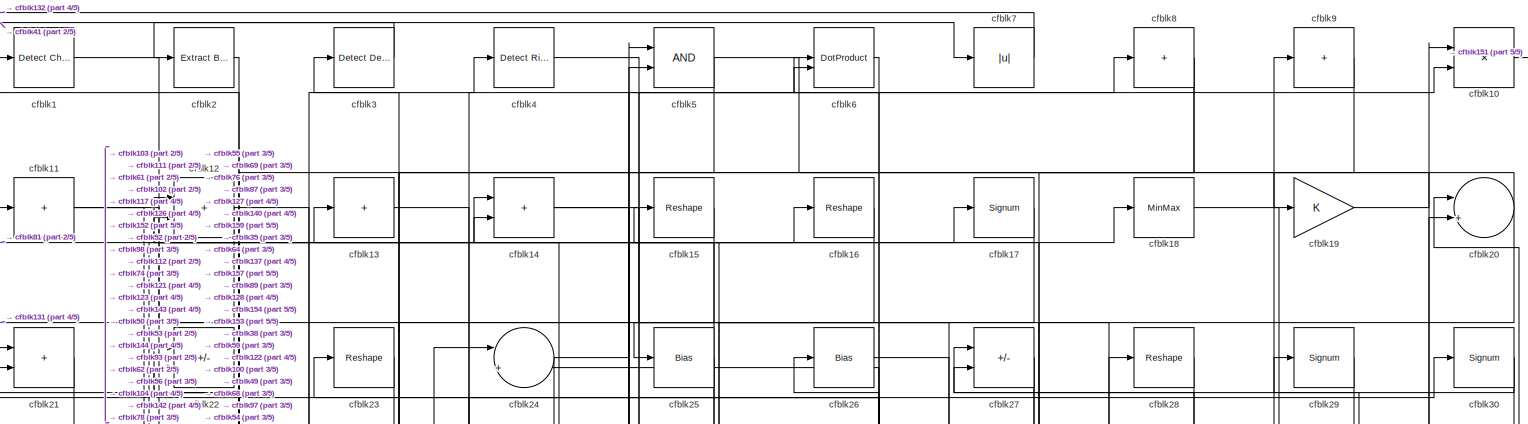
[diagram: root canvas - part 1/5, full width, top band]
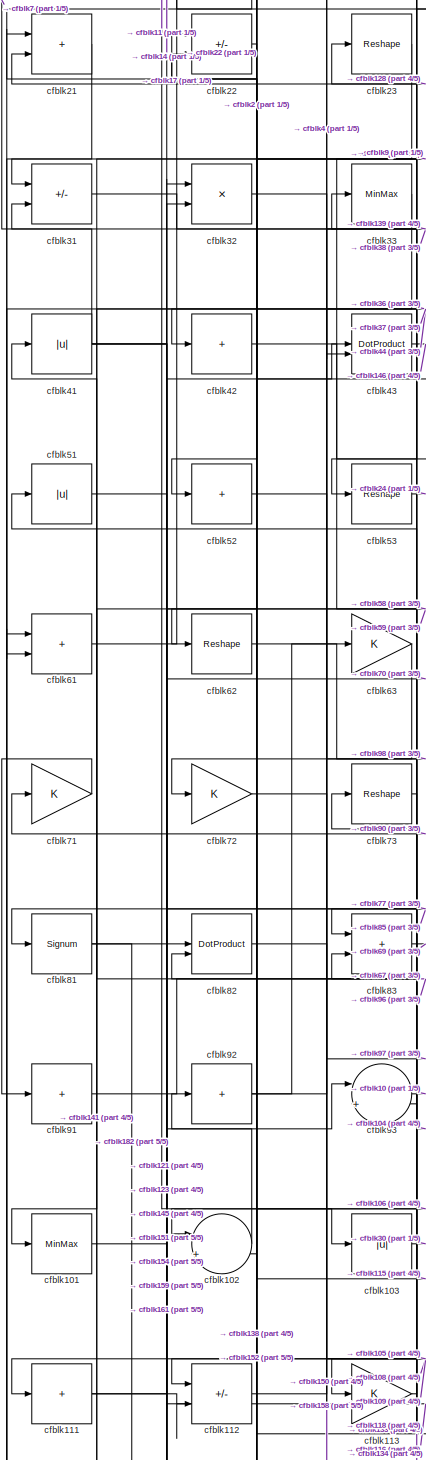
[diagram: root canvas - part 2/5, middle left region]
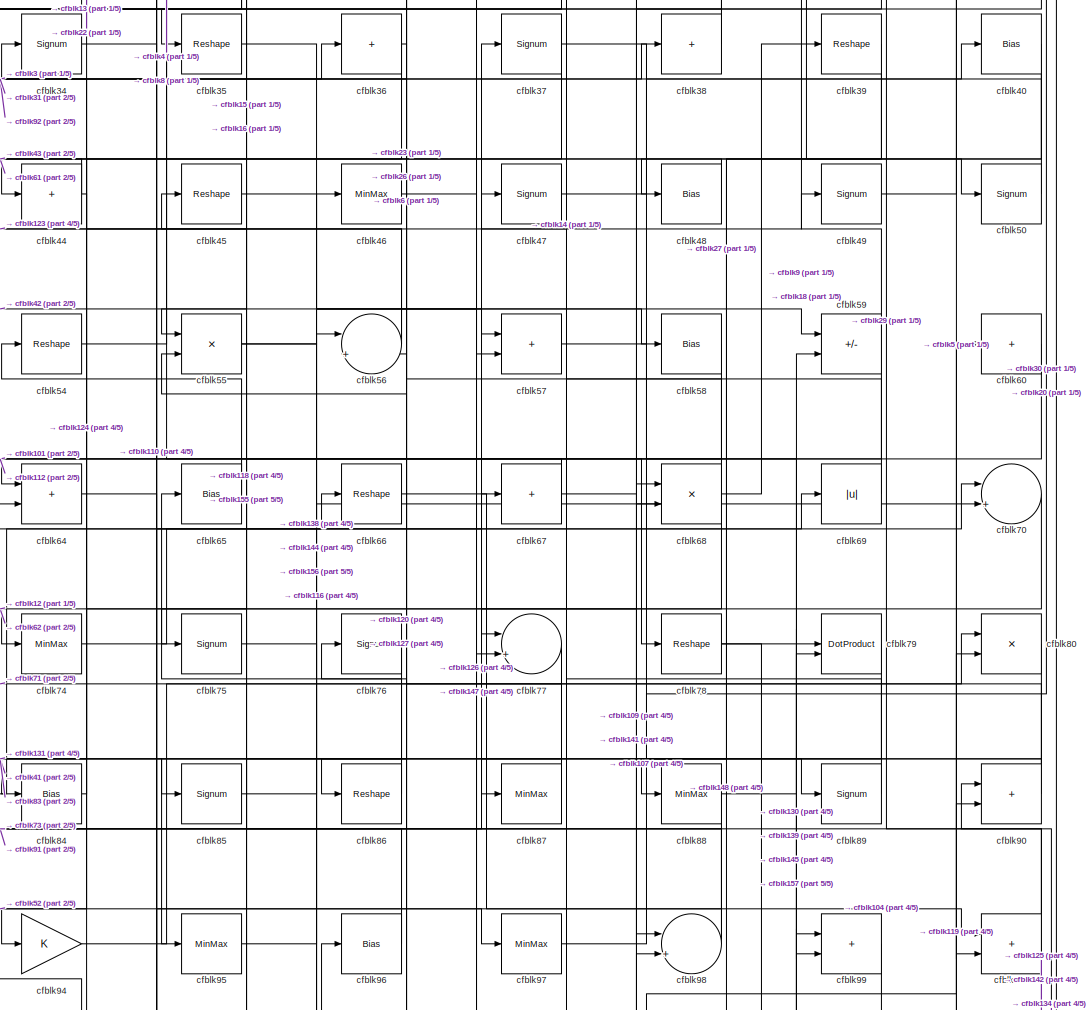
[diagram: root canvas - part 3/5, central region]
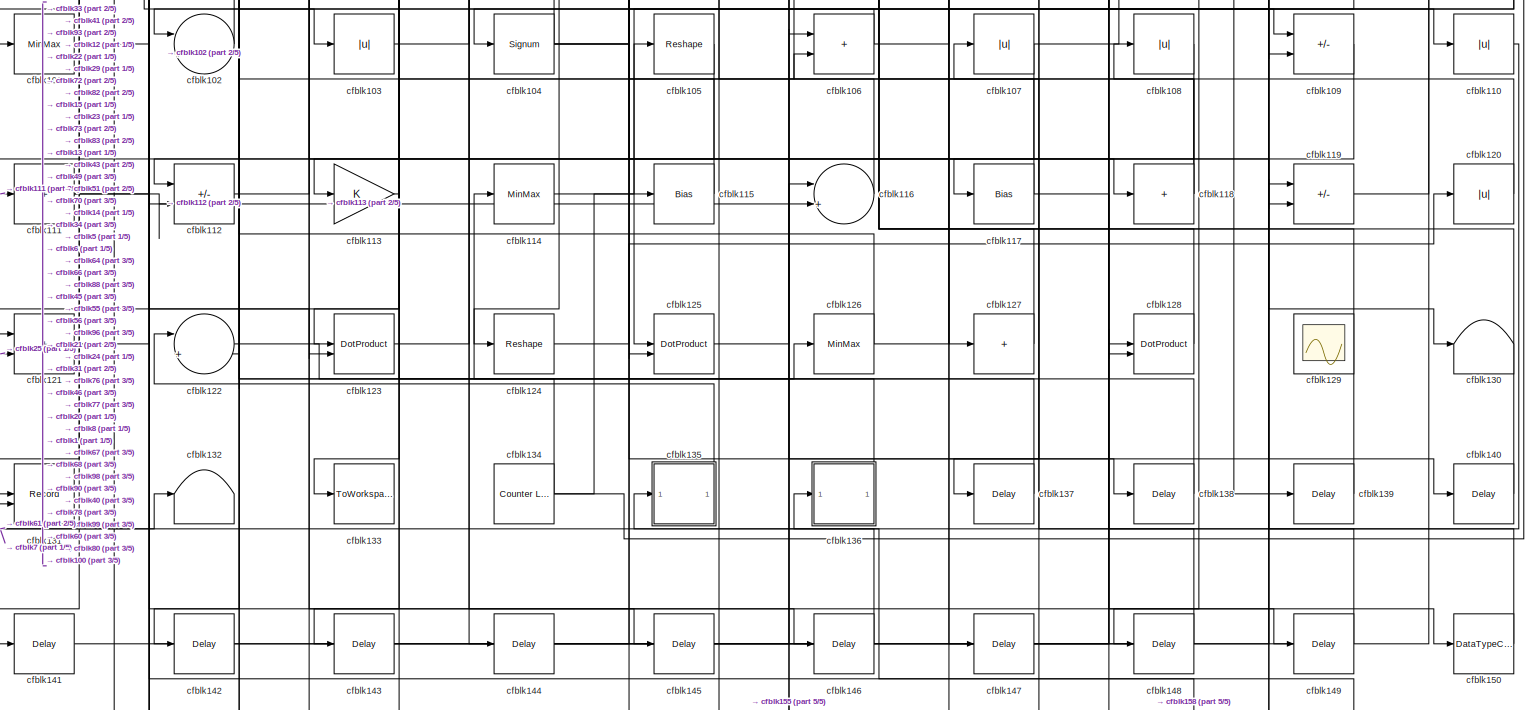
[diagram: root canvas - part 4/5, full width, middle band]
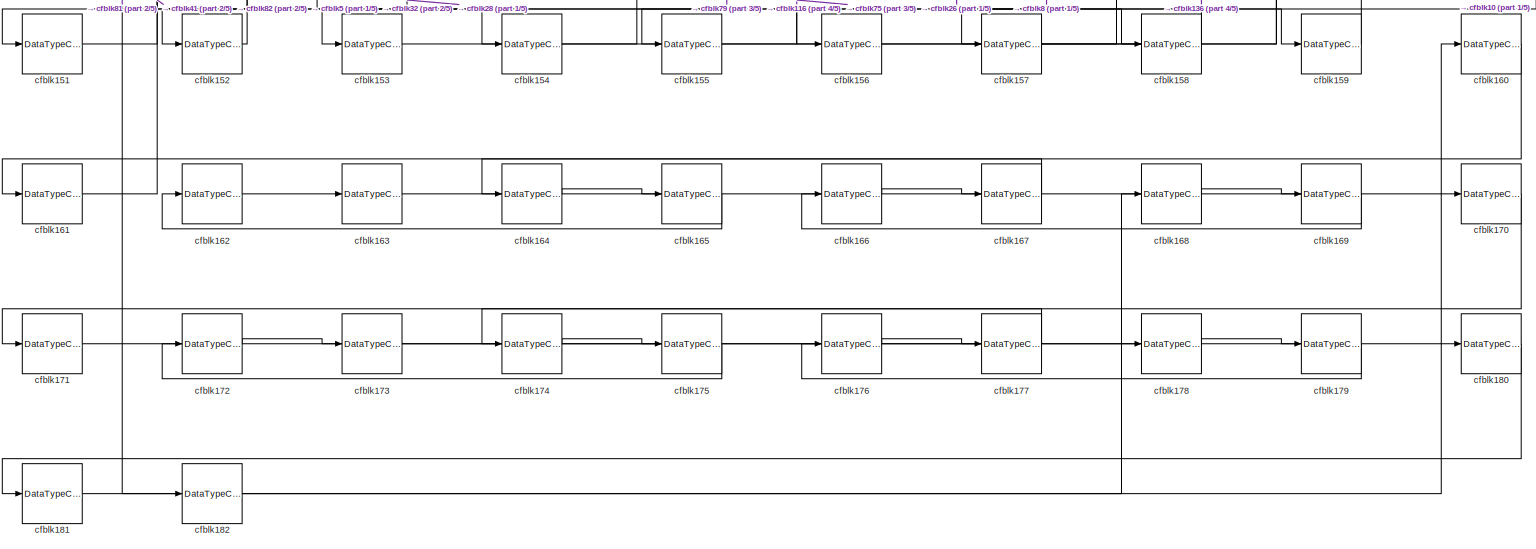
[diagram: root canvas - part 5/5, full width, bottom band]
MODEL slx_d0ea872ea28e
KIND model
CONFIG AbsTol = auto
CONFIG EnableMultiTasking = off
CONFIG FixedStep = auto
CONFIG MaxStep = auto
CONFIG MinStep = auto
CONFIG RelTol = 1e-3
CONFIG SampleTimeConstraint = Unconstrained
CONFIG SolverName = VariableStepAuto
CONFIG StartTime = 0.0
CONFIG StopTime = 10.0
BLOCK [Reference] cfblk1  REF=simulink/Logic and Bit
Operations/Detect
Change
  LibrarySourceBlock = hdlsllib/Logic and Bit\nOperations/Detect\nChange
  SourceBlock = simulink/Logic and Bit\nOperations/Detect\nChange
  SourceType = Detect Change
BLOCK [Product] cfblk10
  Inputs = */
  RndMeth = Zero
  SaturateOnIntegerOverflow = on
BLOCK [Sum] cfblk100
  IconShape = rectangular
BLOCK [MinMax] cfblk101
BLOCK [Sum] cfblk102
  Inputs = |++
BLOCK [Abs] cfblk103
  SaturateOnIntegerOverflow = off
BLOCK [Signum] cfblk104
BLOCK [Reshape] cfblk105
BLOCK [Sum] cfblk106
  IconShape = rectangular
BLOCK [Abs] cfblk107
  SaturateOnIntegerOverflow = off
BLOCK [Abs] cfblk108
  SaturateOnIntegerOverflow = off
BLOCK [Sum] cfblk109
  IconShape = rectangular
  Inputs = +-
BLOCK [Sum] cfblk11
  IconShape = rectangular
  Inputs = +
BLOCK [Abs] cfblk110
  SaturateOnIntegerOverflow = off
BLOCK [Sum] cfblk111
  IconShape = rectangular
  Inputs = +
BLOCK [Sum] cfblk112
  IconShape = rectangular
  Inputs = +-
BLOCK [Gain] cfblk113
BLOCK [MinMax] cfblk114
BLOCK [Bias] cfblk115
  Bias = 0.0
  SaturateOnIntegerOverflow = off
BLOCK [Sum] cfblk116
  Inputs = |++
BLOCK [Bias] cfblk117
  Bias = 0.0
  SaturateOnIntegerOverflow = off
BLOCK [Sum] cfblk118
  IconShape = rectangular
  Inputs = +
BLOCK [Sum] cfblk119
  IconShape = rectangular
  Inputs = +-
BLOCK [Sum] cfblk12
  IconShape = rectangular
BLOCK [Abs] cfblk120
  SaturateOnIntegerOverflow = off
BLOCK [Sum] cfblk121
  IconShape = rectangular
BLOCK [Sum] cfblk122
  Inputs = |++
BLOCK [DotProduct] cfblk123
  OutDataTypeStr = Inherit: Inherit via internal rule
BLOCK [Reshape] cfblk124
BLOCK [DotProduct] cfblk125
  OutDataTypeStr = Inherit: Inherit via internal rule
BLOCK [MinMax] cfblk126
BLOCK [Sum] cfblk127
  IconShape = rectangular
  Inputs = +
BLOCK [DotProduct] cfblk128
  OutDataTypeStr = Inherit: Inherit via internal rule
BLOCK [Scope] cfblk129
  Floating = on
  NumInputPorts = 1
  ScopeSpecificationString = Simulink.scopes.TimeScopeBlockCfg('CurrentConfiguration', extmgr.ConfigurationSet(extmgr.Configuration('Core','General UI',true,'FigureColor',[0.156862745098039 0.156862745098039 0.156862745098039]),extmgr.Configuration('Core','Source UI',true),extmgr.Configuration('Sources','WiredSimulink',true,'DataLoggingVariableName','ScopeData1','DataLoggingSaveFormat','StructureWithTime','DataLoggingLimitDat...<+2713ch>
BLOCK [Sum] cfblk13
  IconShape = rectangular
  Inputs = +
BLOCK [Terminator] cfblk130
BLOCK [Record] cfblk131
  CompatibilityTag = XY
  FileSettingsInternal = {"entries":[{"content":{"excelSettings":{"content":{},"type":"Streamout.ExcelSettings"}},"type":"Streamout.FileSettingStorage","uuid":""}],"packageUris":["http:\/\/schema.mathworks.com\/mf0\/streamout_blocks\/R2020a"],"version":"1.0"}
  Layout = [1 1]
  SignalsInternal = {"entries":[{"content":{"signals":[{"content":{"blockPath":[],"dimensions":[1],"domain":"","lineColor":"#a2142f","plots":[1],"port":1,"signalID":5711,"signalName":"XY Graph:1"},"type":"RecordBlkView.Signal","uuid":""},{"content":{"blockPath":[],"dimensions":[1],"domain":"","lineColor":"#139fff","plots":[1],"port":2,"signalID":5714,"signalName":"XY Graph:2"},"type":"RecordBlkView.Signal","uuid":""}...<+146ch>
  VisualizationBindings = {"xyplotplugin":{"info":[{"series":[{"bindingParametersList":[{"parameter":"X-Axis","signalID":5711,"signalName":"XY Graph:1"},{"parameter":"Y-Axis","signalID":5714,"signalName":"XY Graph:2"}],"seriesID":43094}],"subplotID":1}]}}
  st = -1
BLOCK [Terminator] cfblk132
BLOCK [ToWorkspace] cfblk133
  MaxDataPoints = inf
  SampleTime = -1
  SaveFormat = Timeseries
  VariableName = simout
BLOCK [Reference] cfblk134  REF=hdlsllib/Sources/Counter
Limited
  SourceBlock = hdlsllib/Sources/Counter\nLimited
  SourceType = Counter Limited
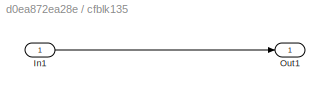
BLOCK [SubSystem] cfblk135
  LibrarySourceBlock = hdlsllib/Ports &\nSubsystems/Subsystem
BLOCK [Inport] cfblk135/In1
BLOCK [Outport] cfblk135/Out1
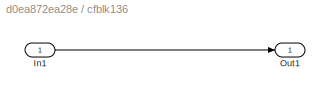
BLOCK [SubSystem] cfblk136
  LibrarySourceBlock = hdlsllib/Ports &\nSubsystems/Subsystem
BLOCK [Inport] cfblk136/In1
BLOCK [Outport] cfblk136/Out1
BLOCK [Delay] cfblk137
  InputPortMap = u0
  SampleTime = 1
BLOCK [Delay] cfblk138
  InputPortMap = u0
  SampleTime = 1
BLOCK [Delay] cfblk139
  InputPortMap = u0
  SampleTime = 1
BLOCK [Sum] cfblk14
  IconShape = rectangular
BLOCK [Delay] cfblk140
  InputPortMap = u0
  SampleTime = 1
BLOCK [Delay] cfblk141
  InputPortMap = u0
  SampleTime = 1
BLOCK [Delay] cfblk142
  InputPortMap = u0
  SampleTime = 1
BLOCK [Delay] cfblk143
  InputPortMap = u0
  SampleTime = 1
BLOCK [Delay] cfblk144
  InputPortMap = u0
  SampleTime = 1
BLOCK [Delay] cfblk145
  InputPortMap = u0
  SampleTime = 1
BLOCK [Delay] cfblk146
  InputPortMap = u0
  SampleTime = 1
BLOCK [Delay] cfblk147
  InputPortMap = u0
  SampleTime = 1
BLOCK [Delay] cfblk148
  InputPortMap = u0
  SampleTime = 1
BLOCK [Delay] cfblk149
  InputPortMap = u0
  SampleTime = 1
BLOCK [Reshape] cfblk15
BLOCK [DataTypeConversion] cfblk150
  OutDataTypeStr = uint8
  RndMeth = Floor
  SaturateOnIntegerOverflow = off
BLOCK [DataTypeConversion] cfblk151
  OutDataTypeStr = uint8
  RndMeth = Floor
  SaturateOnIntegerOverflow = off
BLOCK [DataTypeConversion] cfblk152
  OutDataTypeStr = uint8
  RndMeth = Floor
  SaturateOnIntegerOverflow = off
BLOCK [DataTypeConversion] cfblk153
  OutDataTypeStr = uint8
  RndMeth = Floor
  SaturateOnIntegerOverflow = off
BLOCK [DataTypeConversion] cfblk154
  OutDataTypeStr = uint8
  RndMeth = Floor
  SaturateOnIntegerOverflow = off
BLOCK [DataTypeConversion] cfblk155
  OutDataTypeStr = uint8
  RndMeth = Floor
  SaturateOnIntegerOverflow = off
BLOCK [DataTypeConversion] cfblk156
  OutDataTypeStr = uint8
  RndMeth = Floor
  SaturateOnIntegerOverflow = off
BLOCK [DataTypeConversion] cfblk157
  OutDataTypeStr = uint8
  RndMeth = Floor
  SaturateOnIntegerOverflow = off
BLOCK [DataTypeConversion] cfblk158
  OutDataTypeStr = uint8
  RndMeth = Floor
  SaturateOnIntegerOverflow = off
BLOCK [DataTypeConversion] cfblk159
  OutDataTypeStr = uint8
  RndMeth = Floor
  SaturateOnIntegerOverflow = off
BLOCK [Reshape] cfblk16
BLOCK [DataTypeConversion] cfblk160
  OutDataTypeStr = uint8
  RndMeth = Floor
  SaturateOnIntegerOverflow = off
BLOCK [DataTypeConversion] cfblk161
  OutDataTypeStr = uint8
  RndMeth = Floor
  SaturateOnIntegerOverflow = off
BLOCK [DataTypeConversion] cfblk162
  OutDataTypeStr = uint8
  RndMeth = Floor
  SaturateOnIntegerOverflow = off
BLOCK [DataTypeConversion] cfblk163
  OutDataTypeStr = uint8
  RndMeth = Floor
  SaturateOnIntegerOverflow = off
BLOCK [DataTypeConversion] cfblk164
  OutDataTypeStr = uint8
  RndMeth = Floor
  SaturateOnIntegerOverflow = off
BLOCK [DataTypeConversion] cfblk165
  OutDataTypeStr = uint8
  RndMeth = Floor
  SaturateOnIntegerOverflow = off
BLOCK [DataTypeConversion] cfblk166
  OutDataTypeStr = uint8
  RndMeth = Floor
  SaturateOnIntegerOverflow = off
BLOCK [DataTypeConversion] cfblk167
  OutDataTypeStr = uint8
  RndMeth = Floor
  SaturateOnIntegerOverflow = off
BLOCK [DataTypeConversion] cfblk168
  OutDataTypeStr = uint8
  RndMeth = Floor
  SaturateOnIntegerOverflow = off
BLOCK [DataTypeConversion] cfblk169
  OutDataTypeStr = uint8
  RndMeth = Floor
  SaturateOnIntegerOverflow = off
BLOCK [Signum] cfblk17
BLOCK [DataTypeConversion] cfblk170
  OutDataTypeStr = uint8
  RndMeth = Floor
  SaturateOnIntegerOverflow = off
BLOCK [DataTypeConversion] cfblk171
  OutDataTypeStr = uint8
  RndMeth = Floor
  SaturateOnIntegerOverflow = off
BLOCK [DataTypeConversion] cfblk172
  OutDataTypeStr = uint8
  RndMeth = Floor
  SaturateOnIntegerOverflow = off
BLOCK [DataTypeConversion] cfblk173
  OutDataTypeStr = uint8
  RndMeth = Floor
  SaturateOnIntegerOverflow = off
BLOCK [DataTypeConversion] cfblk174
  OutDataTypeStr = uint8
  RndMeth = Floor
  SaturateOnIntegerOverflow = off
BLOCK [DataTypeConversion] cfblk175
  OutDataTypeStr = uint8
  RndMeth = Floor
  SaturateOnIntegerOverflow = off
BLOCK [DataTypeConversion] cfblk176
  OutDataTypeStr = uint8
  RndMeth = Floor
  SaturateOnIntegerOverflow = off
BLOCK [DataTypeConversion] cfblk177
  OutDataTypeStr = uint8
  RndMeth = Floor
  SaturateOnIntegerOverflow = off
BLOCK [DataTypeConversion] cfblk178
  OutDataTypeStr = uint8
  RndMeth = Floor
  SaturateOnIntegerOverflow = off
BLOCK [DataTypeConversion] cfblk179
  OutDataTypeStr = uint8
  RndMeth = Floor
  SaturateOnIntegerOverflow = off
BLOCK [MinMax] cfblk18
BLOCK [DataTypeConversion] cfblk180
  OutDataTypeStr = uint8
  RndMeth = Floor
  SaturateOnIntegerOverflow = off
BLOCK [DataTypeConversion] cfblk181
  OutDataTypeStr = uint8
  RndMeth = Floor
  SaturateOnIntegerOverflow = off
BLOCK [DataTypeConversion] cfblk182
  OutDataTypeStr = uint8
  RndMeth = Floor
  SaturateOnIntegerOverflow = off
BLOCK [Gain] cfblk19
BLOCK [Reference] cfblk2  REF=simulink/Logic and Bit
Operations/Extract Bits
  LibrarySourceBlock = hdlsllib/Logic and Bit\nOperations/Extract Bits
  SourceBlock = simulink/Logic and Bit\nOperations/Extract Bits
  SourceType = Extract Bits
BLOCK [Sum] cfblk20
  Inputs = |++
BLOCK [Sum] cfblk21
  IconShape = rectangular
BLOCK [Sum] cfblk22
  IconShape = rectangular
  Inputs = +-
BLOCK [Reshape] cfblk23
BLOCK [Sum] cfblk24
  Inputs = |++
BLOCK [Bias] cfblk25
  Bias = 0.0
  SaturateOnIntegerOverflow = off
BLOCK [Bias] cfblk26
  Bias = 0.0
  SaturateOnIntegerOverflow = off
BLOCK [Sum] cfblk27
  IconShape = rectangular
  Inputs = +-
BLOCK [Reshape] cfblk28
BLOCK [Signum] cfblk29
BLOCK [Reference] cfblk3  REF=simulink/Logic and Bit
Operations/Detect
Decrease
  LibrarySourceBlock = hdlsllib/Logic and Bit\nOperations/Detect\nDecrease
  SourceBlock = simulink/Logic and Bit\nOperations/Detect\nDecrease
  SourceType = Detect Decrease
BLOCK [Signum] cfblk30
BLOCK [Sum] cfblk31
  IconShape = rectangular
  Inputs = +-
BLOCK [Product] cfblk32
  Inputs = */
  RndMeth = Zero
  SaturateOnIntegerOverflow = on
BLOCK [MinMax] cfblk33
BLOCK [Signum] cfblk34
BLOCK [Reshape] cfblk35
BLOCK [Sum] cfblk36
  IconShape = rectangular
  Inputs = +
BLOCK [Signum] cfblk37
BLOCK [Sum] cfblk38
  IconShape = rectangular
  Inputs = +
BLOCK [Reshape] cfblk39
BLOCK [Reference] cfblk4  REF=hdlsllib/Logic and Bit
Operations/Detect Rise
Nonnegative
  SourceBlock = hdlsllib/Logic and Bit\nOperations/Detect Rise\nNonnegative
  SourceType = Detect Rise Nonnegative
BLOCK [Bias] cfblk40
  Bias = 0.0
  SaturateOnIntegerOverflow = off
BLOCK [Abs] cfblk41
  SaturateOnIntegerOverflow = off
BLOCK [Sum] cfblk42
  IconShape = rectangular
  Inputs = +
BLOCK [DotProduct] cfblk43
  OutDataTypeStr = Inherit: Inherit via internal rule
BLOCK [Sum] cfblk44
  IconShape = rectangular
  Inputs = +
BLOCK [Reshape] cfblk45
BLOCK [MinMax] cfblk46
BLOCK [Signum] cfblk47
BLOCK [Bias] cfblk48
  Bias = 0.0
  SaturateOnIntegerOverflow = off
BLOCK [Signum] cfblk49
BLOCK [Logic] cfblk5
  AllPortsSameDT = off
  OutDataTypeStr = boolean
BLOCK [Signum] cfblk50
BLOCK [Abs] cfblk51
  SaturateOnIntegerOverflow = off
BLOCK [Sum] cfblk52
  IconShape = rectangular
  Inputs = +
BLOCK [Reshape] cfblk53
BLOCK [Reshape] cfblk54
BLOCK [Product] cfblk55
  Inputs = */
  RndMeth = Zero
  SaturateOnIntegerOverflow = on
BLOCK [Sum] cfblk56
  Inputs = |++
BLOCK [Sum] cfblk57
  IconShape = rectangular
BLOCK [Bias] cfblk58
  Bias = 0.0
  SaturateOnIntegerOverflow = off
BLOCK [Sum] cfblk59
  IconShape = rectangular
  Inputs = +-
BLOCK [DotProduct] cfblk6
  OutDataTypeStr = Inherit: Inherit via internal rule
BLOCK [Sum] cfblk60
  IconShape = rectangular
  Inputs = +
BLOCK [Sum] cfblk61
  IconShape = rectangular
BLOCK [Reshape] cfblk62
BLOCK [Gain] cfblk63
BLOCK [Sum] cfblk64
  IconShape = rectangular
BLOCK [Bias] cfblk65
  Bias = 0.0
  SaturateOnIntegerOverflow = off
BLOCK [Reshape] cfblk66
BLOCK [Sum] cfblk67
  IconShape = rectangular
  Inputs = +
BLOCK [Product] cfblk68
  Inputs = */
  RndMeth = Zero
  SaturateOnIntegerOverflow = on
BLOCK [Abs] cfblk69
  SaturateOnIntegerOverflow = off
BLOCK [Abs] cfblk7
  SaturateOnIntegerOverflow = off
BLOCK [Sum] cfblk70
  Inputs = |++
BLOCK [Gain] cfblk71
BLOCK [Gain] cfblk72
BLOCK [Reshape] cfblk73
BLOCK [MinMax] cfblk74
BLOCK [Signum] cfblk75
BLOCK [Signum] cfblk76
BLOCK [Sum] cfblk77
  Inputs = |++
BLOCK [Reshape] cfblk78
BLOCK [DotProduct] cfblk79
  OutDataTypeStr = Inherit: Inherit via internal rule
BLOCK [Sum] cfblk8
  IconShape = rectangular
  Inputs = +
BLOCK [Product] cfblk80
  Inputs = */
  RndMeth = Zero
  SaturateOnIntegerOverflow = on
BLOCK [Signum] cfblk81
BLOCK [DotProduct] cfblk82
  OutDataTypeStr = Inherit: Inherit via internal rule
BLOCK [Sum] cfblk83
  IconShape = rectangular
BLOCK [Bias] cfblk84
  Bias = 0.0
  SaturateOnIntegerOverflow = off
BLOCK [Signum] cfblk85
BLOCK [Reshape] cfblk86
BLOCK [MinMax] cfblk87
BLOCK [MinMax] cfblk88
BLOCK [Signum] cfblk89
BLOCK [Sum] cfblk9
  IconShape = rectangular
  Inputs = +
BLOCK [Sum] cfblk90
  IconShape = rectangular
BLOCK [Sum] cfblk91
  IconShape = rectangular
  Inputs = +
BLOCK [Sum] cfblk92
  IconShape = rectangular
  Inputs = +
BLOCK [Sum] cfblk93
  Inputs = |++
BLOCK [Gain] cfblk94
BLOCK [MinMax] cfblk95
BLOCK [Bias] cfblk96
  Bias = 0.0
  SaturateOnIntegerOverflow = off
BLOCK [MinMax] cfblk97
BLOCK [Sum] cfblk98
  Inputs = |++
BLOCK [Sum] cfblk99
  IconShape = rectangular
NET cfblk100:1 -> cfblk125:1, cfblk142:1, cfblk15:1, cfblk29:1
LINE cfblk101:1 -> cfblk70:1
LINE cfblk102:1 -> cfblk92:1
LINE cfblk103:1 -> cfblk30:1
NET cfblk104:1 -> cfblk106:2, cfblk51:1, cfblk66:1, cfblk6:2
LINE cfblk105:1 -> cfblk111:1
NET cfblk106:1 -> cfblk102:1, cfblk109:1
NET cfblk107:1 -> cfblk117:1, cfblk90:2
LINE cfblk108:1 -> cfblk112:1
LINE cfblk109:1 -> cfblk113:1
LINE cfblk10:1 -> cfblk151:1
LINE cfblk110:1 -> cfblk135:1
NET cfblk111:1 -> cfblk116:2, cfblk14:2
LINE cfblk112:1 -> cfblk4:1
LINE cfblk113:1 -> cfblk33:1
LINE cfblk114:1 -> cfblk105:1
LINE cfblk115:1 -> cfblk83:2
LINE cfblk116:1 -> cfblk96:1
NET cfblk117:1 -> cfblk12:1, cfblk149:1
NET cfblk118:1 -> cfblk108:1, cfblk45:1
LINE cfblk119:1 -> cfblk60:1
NET cfblk11:1 -> cfblk103:1, cfblk16:1
LINE cfblk120:1 -> cfblk76:1
LINE cfblk121:1 -> cfblk93:1
LINE cfblk122:1 -> cfblk126:1
LINE cfblk123:1 -> cfblk49:1
LINE cfblk124:1 -> cfblk120:1
LINE cfblk125:1 -> cfblk106:1
NET cfblk126:1 -> cfblk22:1, cfblk77:2
LINE cfblk127:1 -> cfblk55:2
LINE cfblk128:1 -> cfblk21:2
NET cfblk12:1 -> cfblk131:2, cfblk74:1
NET cfblk134:1 -> cfblk115:1, cfblk90:1, cfblk93:2
LINE cfblk135/In1:1 -> cfblk135/Out1:1
LINE cfblk135:1 -> cfblk122:1
LINE cfblk136/In1:1 -> cfblk136/Out1:1
LINE cfblk136:1 -> cfblk114:1
LINE cfblk137:1 -> cfblk1:1
LINE cfblk138:1 -> cfblk21:1
LINE cfblk139:1 -> cfblk31:2
LINE cfblk13:1 -> cfblk144:1
LINE cfblk140:1 -> cfblk24:2
LINE cfblk141:1 -> cfblk98:2
LINE cfblk142:1 -> cfblk5:2
LINE cfblk143:1 -> cfblk128:1
LINE cfblk144:1 -> cfblk56:1
LINE cfblk145:1 -> cfblk99:1
LINE cfblk146:1 -> cfblk61:1
LINE cfblk147:1 -> cfblk80:2
LINE cfblk148:1 -> cfblk68:1
LINE cfblk149:1 -> cfblk107:1
NET cfblk14:1 -> cfblk127:1, cfblk140:1
LINE cfblk150:1 -> cfblk119:1
LINE cfblk151:1 -> cfblk82:1
LINE cfblk152:1 -> cfblk82:2
LINE cfblk153:1 -> cfblk5:1
LINE cfblk154:1 -> cfblk28:1
LINE cfblk155:1 -> cfblk116:1
LINE cfblk156:1 -> cfblk79:1
LINE cfblk157:1 -> cfblk79:2
LINE cfblk158:1 -> cfblk136:1
LINE cfblk159:1 -> cfblk32:1
LINE cfblk15:1 -> cfblk143:1
LINE cfblk160:1 -> cfblk161:1
LINE cfblk161:1 -> cfblk32:2
LINE cfblk162:1 -> cfblk163:1
LINE cfblk163:1 -> cfblk160:1
LINE cfblk164:1 -> cfblk165:1
LINE cfblk165:1 -> cfblk162:1
LINE cfblk166:1 -> cfblk167:1
LINE cfblk167:1 -> cfblk164:1
LINE cfblk168:1 -> cfblk169:1
LINE cfblk169:1 -> cfblk166:1
LINE cfblk16:1 -> cfblk55:1
LINE cfblk170:1 -> cfblk171:1
LINE cfblk171:1 -> cfblk168:1
LINE cfblk172:1 -> cfblk173:1
LINE cfblk173:1 -> cfblk170:1
LINE cfblk174:1 -> cfblk175:1
LINE cfblk175:1 -> cfblk172:1
LINE cfblk176:1 -> cfblk177:1
LINE cfblk177:1 -> cfblk174:1
LINE cfblk178:1 -> cfblk179:1
LINE cfblk179:1 -> cfblk176:1
LINE cfblk17:1 -> cfblk25:1
LINE cfblk180:1 -> cfblk181:1
LINE cfblk181:1 -> cfblk178:1
LINE cfblk182:1 -> cfblk180:1
LINE cfblk18:1 -> cfblk50:1
LINE cfblk19:1 -> cfblk10:1
LINE cfblk1:1 -> cfblk128:2
NET cfblk20:1 -> cfblk137:1, cfblk19:1
LINE cfblk21:1 -> cfblk31:1
LINE cfblk22:1 -> cfblk52:1
LINE cfblk23:1 -> cfblk121:1
NET cfblk24:1 -> cfblk18:1, cfblk62:1
NET cfblk25:1 -> cfblk11:1, cfblk121:2, cfblk81:1
LINE cfblk26:1 -> cfblk159:1
NET cfblk27:1 -> cfblk35:1, cfblk64:2
LINE cfblk28:1 -> cfblk153:1
LINE cfblk29:1 -> cfblk122:2
LINE cfblk2:1 -> cfblk102:2
NET cfblk30:1 -> cfblk27:2, cfblk68:2
LINE cfblk31:1 -> cfblk36:1
LINE cfblk32:1 -> cfblk158:1
LINE cfblk33:1 -> cfblk141:1
LINE cfblk34:1 -> cfblk119:2
LINE cfblk35:1 -> cfblk57:2
NET cfblk36:1 -> cfblk61:2, cfblk86:1
NET cfblk37:1 -> cfblk43:2, cfblk99:2
LINE cfblk38:1 -> cfblk27:1
NET cfblk39:1 -> cfblk48:1, cfblk88:1
LINE cfblk3:1 -> cfblk2:1
NET cfblk40:1 -> cfblk148:1, cfblk84:1
NET cfblk41:1 -> cfblk123:2, cfblk154:1, cfblk7:1, cfblk85:1
LINE cfblk42:1 -> cfblk59:1
LINE cfblk43:1 -> cfblk146:1
NET cfblk44:1 -> cfblk42:1, cfblk94:1
LINE cfblk45:1 -> cfblk57:1
LINE cfblk46:1 -> cfblk147:1
LINE cfblk47:1 -> cfblk40:1
LINE cfblk48:1 -> cfblk44:1
LINE cfblk49:1 -> cfblk20:2
LINE cfblk4:1 -> cfblk78:1
LINE cfblk50:1 -> cfblk3:1
LINE cfblk51:1 -> cfblk145:1
LINE cfblk52:1 -> cfblk97:1
LINE cfblk53:1 -> cfblk24:1
LINE cfblk54:1 -> cfblk8:1
NET cfblk55:1 -> cfblk138:1, cfblk58:1
NET cfblk56:1 -> cfblk13:1, cfblk22:2
LINE cfblk57:1 -> cfblk89:1
LINE cfblk58:1 -> cfblk112:2
NET cfblk59:1 -> cfblk101:1, cfblk9:1
NET cfblk5:1 -> cfblk100:2, cfblk152:1
LINE cfblk60:1 -> cfblk75:1
LINE cfblk61:1 -> cfblk17:1
LINE cfblk62:1 -> cfblk98:1
LINE cfblk63:1 -> cfblk72:1
LINE cfblk64:1 -> cfblk110:1
LINE cfblk65:1 -> cfblk54:1
LINE cfblk66:1 -> cfblk100:1
NET cfblk67:1 -> cfblk109:2, cfblk64:1
NET cfblk68:1 -> cfblk39:1, cfblk47:1, cfblk77:1
LINE cfblk69:1 -> cfblk23:1
LINE cfblk6:1 -> cfblk56:2
LINE cfblk70:1 -> cfblk124:1
LINE cfblk71:1 -> cfblk91:1
LINE cfblk72:1 -> cfblk118:1
LINE cfblk73:1 -> cfblk133:1
LINE cfblk74:1 -> cfblk37:1
LINE cfblk75:1 -> cfblk156:1
NET cfblk76:1 -> cfblk131:1, cfblk6:1
LINE cfblk77:1 -> cfblk83:1
NET cfblk78:1 -> cfblk130:1, cfblk139:1
LINE cfblk79:1 -> cfblk155:1
LINE cfblk7:1 -> cfblk132:1
LINE cfblk80:1 -> cfblk95:1
NET cfblk81:1 -> cfblk182:1, cfblk43:1
LINE cfblk82:1 -> cfblk150:1
LINE cfblk83:1 -> cfblk69:1
LINE cfblk84:1 -> cfblk34:1
LINE cfblk85:1 -> cfblk70:2
LINE cfblk86:1 -> cfblk65:1
LINE cfblk87:1 -> cfblk26:1
NET cfblk88:1 -> cfblk125:2, cfblk59:2
LINE cfblk89:1 -> cfblk14:1
NET cfblk8:1 -> cfblk123:1, cfblk157:1
NET cfblk90:1 -> cfblk71:1, cfblk87:1
LINE cfblk91:1 -> cfblk67:1
NET cfblk92:1 -> cfblk38:1, cfblk63:1
LINE cfblk93:1 -> cfblk10:2
LINE cfblk94:1 -> cfblk80:1
LINE cfblk95:1 -> cfblk46:1
LINE cfblk96:1 -> cfblk73:1
LINE cfblk97:1 -> cfblk20:1
NET cfblk98:1 -> cfblk12:2, cfblk41:1
LINE cfblk99:1 -> cfblk104:1
LINE cfblk9:1 -> cfblk53:1
note: NET lines group one-source signal fan-out (src -> all destinations, sorted); 1:1 wires keep LINE
